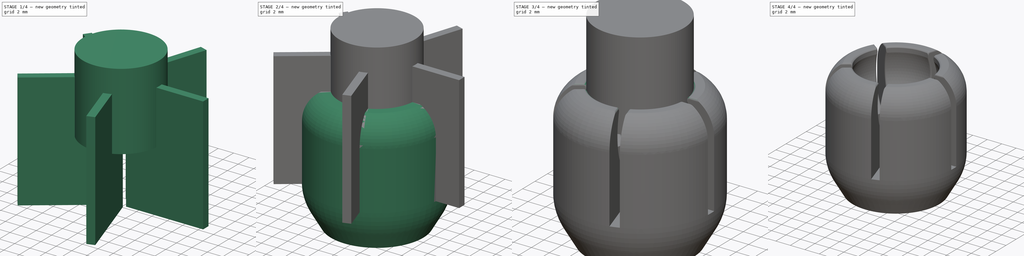
[diagram: build sequence overview — one tinted view per stage of 4, left to right]
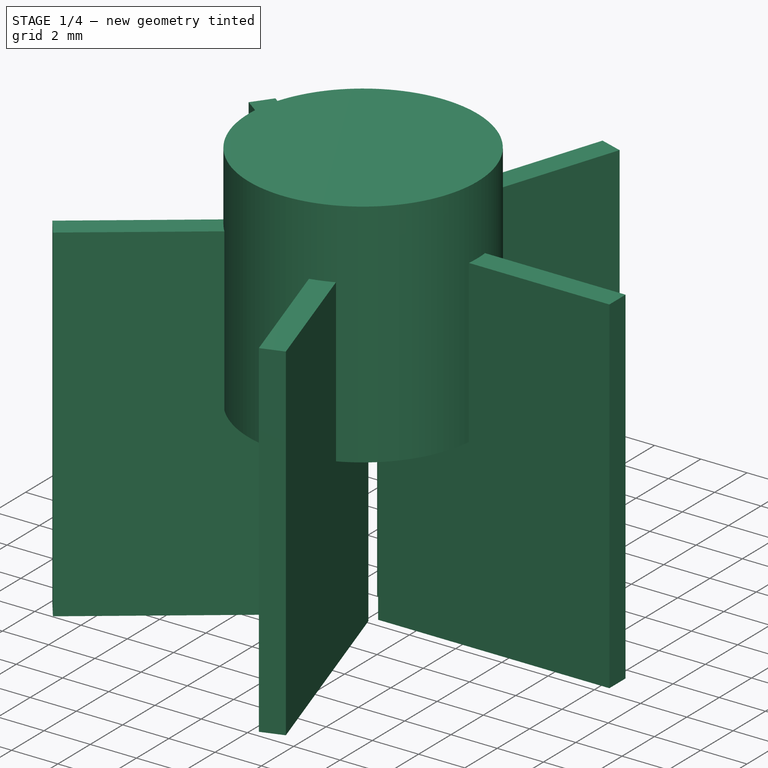
[diagram: stage 1 of 4 — iso view after this stage's code; geometry added in this stage tinted green]
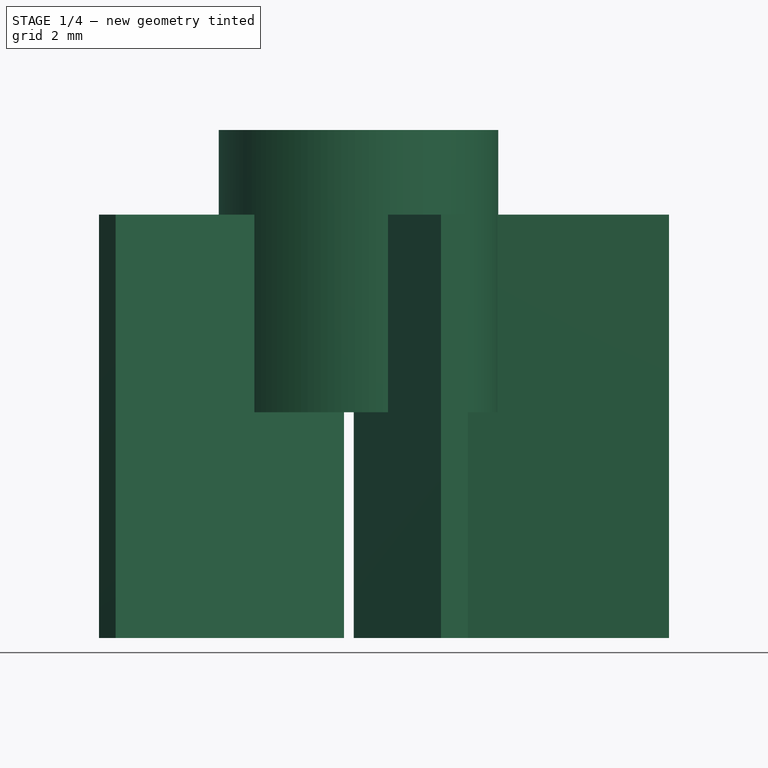
[diagram: stage 1 of 4 — front view after this stage's code; geometry added in this stage tinted green]
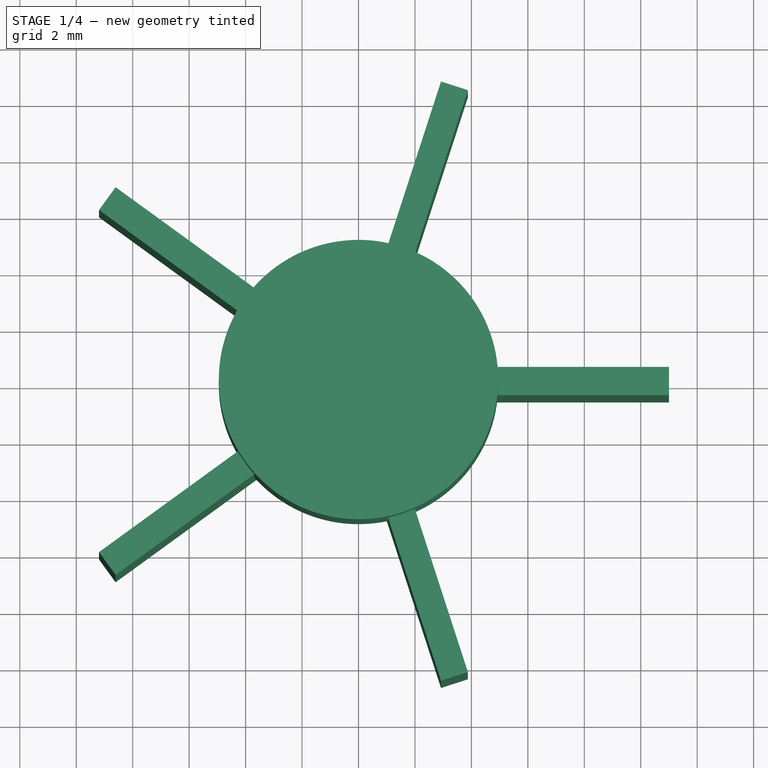
[diagram: stage 1 of 4 — top view after this stage's code; geometry added in this stage tinted green]
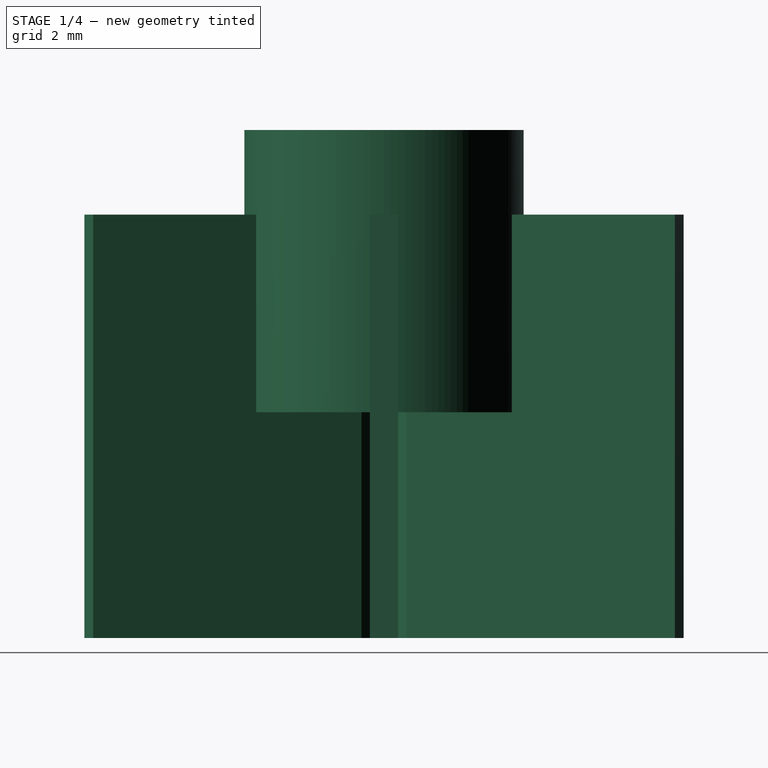
[diagram: stage 1 of 4 — right view after this stage's code; geometry added in this stage tinted green]
FCSTD DOCUMENT  (FreeCAD 0.16R6712 (Git))
Label: bola_loca
License: All rights reserved
LicenseURL: http://en.wikipedia.org/wiki/All_rights_reserved
objects: Part::Cut×3, PartDesign::Fillet×3, PartDesign::Chamfer×2, Sketcher::SketchObject×1, Part::Sphere×1, PartDesign::Revolution×1, Part::Box×1, Part::FeaturePython×1, Part::Cylinder×1
note: 15 computed .brp shape members not serialized (recipe doc carries the construction recipe); baked Part::Feature solids carry a one-line shape summary decoded from their .brp

FEATURE [Part::Box] Box  label="Cubo"
  Height = 15
  Length = 10
  Placement = pos=(1,-0.5,5) rot=(0,0,1;0rad)
  Width = 1
FEATURE [Part::FeaturePython] Array  # Draft array (typed FeaturePython)
  Angle = 360
  ArrayType = 1
  Axis = (0,0,1)
  Base = -> Box
  Center = (0,0,0)
  Fuse = false
  IntervalAxis = (0,0,0)
  IntervalX = (1,0,0)
  IntervalY = (0,1,0)
  IntervalZ = (0,0,0)
  NumberPolar = 5
  NumberX = 2
  NumberY = 2
  NumberZ = 1
FEATURE [Part::Cylinder] Cylinder  label="Cilindro"
  Angle = 360
  Height = 10
  Placement = pos=(0,0,13) rot=(0,0,1;0rad)
  Radius = 4.95
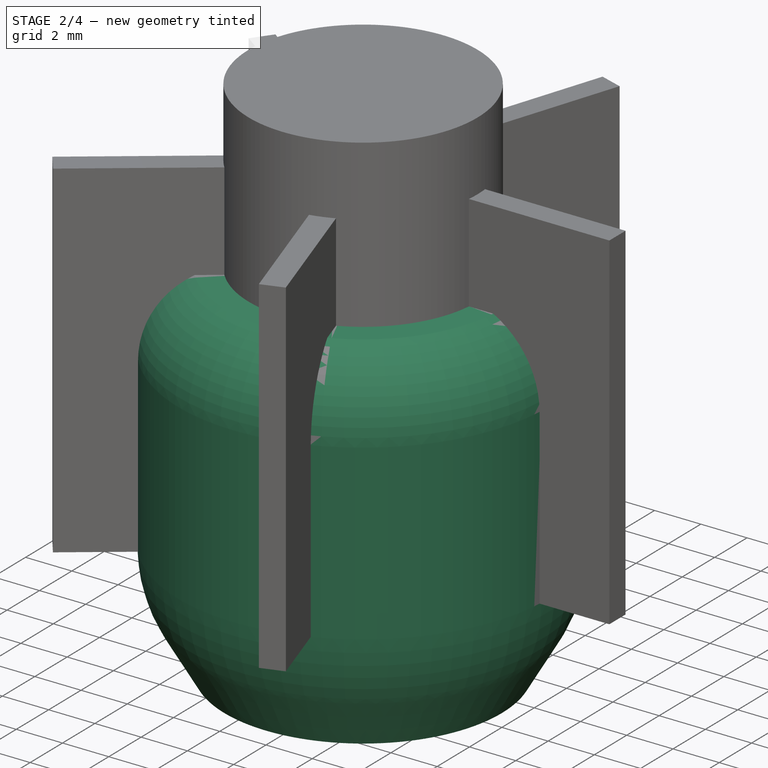
[diagram: stage 2 of 4 — iso view after this stage's code; geometry added in this stage tinted green]
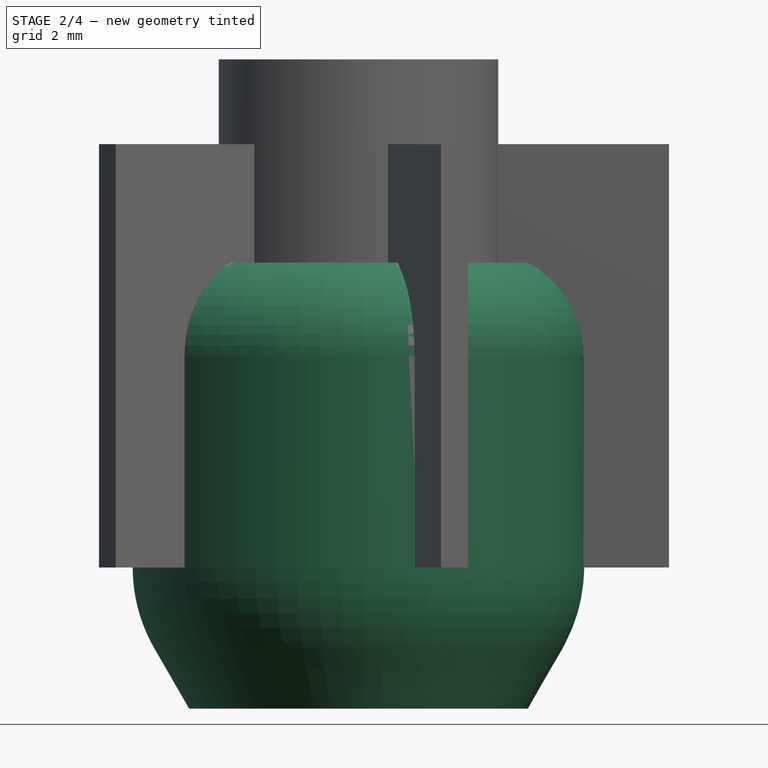
[diagram: stage 2 of 4 — front view after this stage's code; geometry added in this stage tinted green]
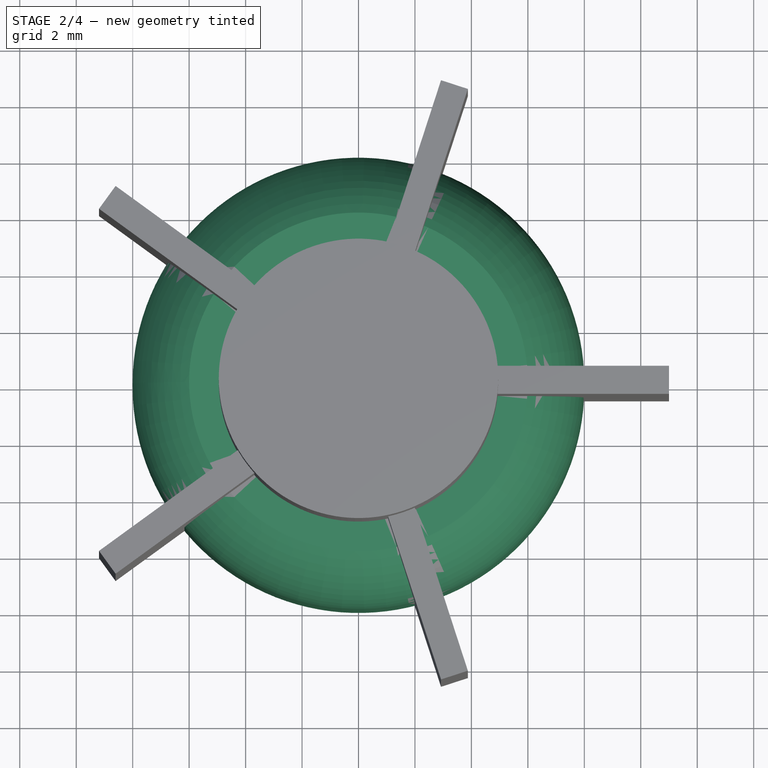
[diagram: stage 2 of 4 — top view after this stage's code; geometry added in this stage tinted green]
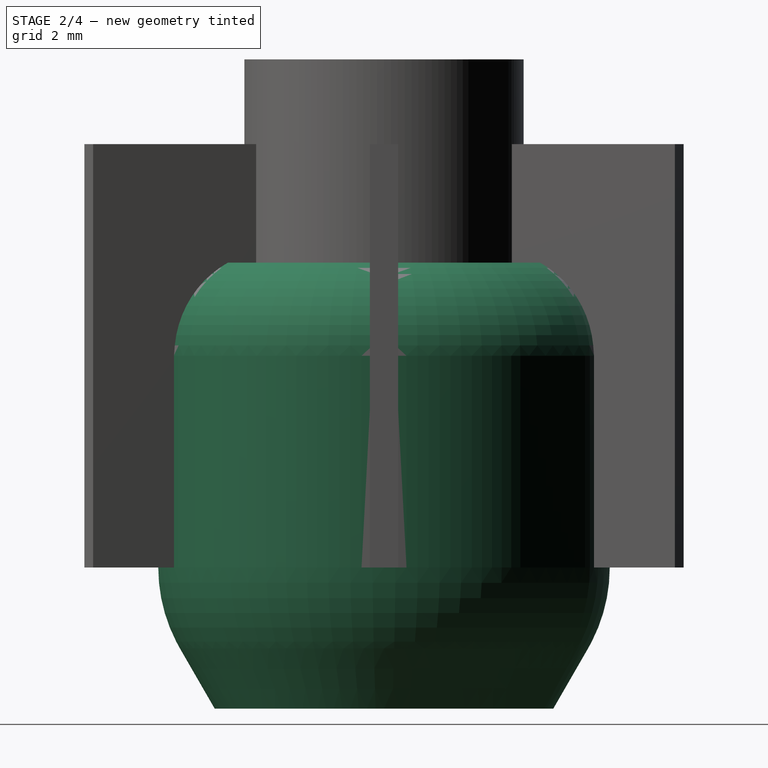
[diagram: stage 2 of 4 — right view after this stage's code; geometry added in this stage tinted green]
FEATURE [Sketcher::SketchObject] Sketch
  Placement = pos=(0,0,0) rot=(1,0,0;1.5708rad)
  sketch-geometry (9):
    g0: LineSegment StartX=-1.6 StartY=0 StartZ=0 EndX=-1.6 EndY=5 EndZ=0
    g1: LineSegment StartX=-1.6 StartY=5 StartZ=0 EndX=-3 EndY=5 EndZ=0
    g2: LineSegment StartX=-3 StartY=5 StartZ=0 EndX=-3 EndY=15.8 EndZ=0
    g3: LineSegment StartX=-3 StartY=15.8 StartZ=0 EndX=-6 EndY=15.8 EndZ=0
    g4: ArcOfCircle CenterX=-4.2775 CenterY=12.5 CenterZ=0 NormalX=0 NormalY=0 NormalZ=1 Radius=3.7225 StartAngle=2.05186 EndAngle=3.14159
    g5: LineSegment StartX=-8 StartY=12.5 StartZ=0 EndX=-8 EndY=5 EndZ=0
    g6: ArcOfCircle CenterX=-2.26795 CenterY=5 CenterZ=0 NormalX=0 NormalY=0 NormalZ=1 Radius=5.73205 StartAngle=3.14159 EndAngle=3.66519
    g7: LineSegment StartX=-7.23205 StartY=2.13397 StartZ=0 EndX=-6 EndY=0 EndZ=0
    g8: LineSegment StartX=-6 StartY=0 StartZ=0 EndX=-1.6 EndY=0 EndZ=0
  constraints (29):
    c: PointOnObject(g0,g-1)
    c: Vertical(g0)
    c: Coincident(g0,g1)
    c: Horizontal(g1)
    c: Coincident(g1,g2)
    c: Vertical(g2)
    c: Coincident(g2,g3)
    c: Horizontal(g3)
    c: Coincident(g4,g3)
    c: DistanceX(g0,g-1) = 1.6
    c: DistanceX(g1,g-1) = 3
    c: DistanceY(g-1,g2) = 15.8
    c: Vertical(g5)
    c: DistanceX(g3,g3) = 3
    c: DistanceY(g-1,g5) = 12.5
    c: DistanceX(g5,g-1) = 8
    c: Coincident(g4,g5)
    c: Tangent(g5,g4)
    c: DistanceY(g-1,g5) = 5
    c: Coincident(g6,g5)
    c: Tangent(g6,g5)
    c: Coincident(g7,g6)
    c: PointOnObject(g7,g-1)
    c: Coincident(g8,g7)
    c: Coincident(g8,g0)
    c: Tangent(g6,g7)
    c: DistanceX(g7,g-1) = 6
    c: Angle(g8,g7) = 2.0944
    c: DistanceY(g0,g0) = 5
FEATURE [Part::Sphere] Sphere  label="Esfera"
  Angle1 = -90
  Angle2 = 90
  Angle3 = 360
  Placement = pos=(0,0,13) rot=(0,0,1;0rad)
  Radius = 5.35
FEATURE [PartDesign::Revolution] Revolution
  Angle = 360
  Axis = (0,0,1)
  Base = (0,0,0)
  Placement = pos=(0,0,0) rot=(1,0,0;1.5708rad)
  ReferenceAxis = -> Sketch [V_Axis]
  Sketch = -> Sketch
FEATURE [Part::Cut] Cut
  Base = -> Revolution
  Tool = -> Sphere
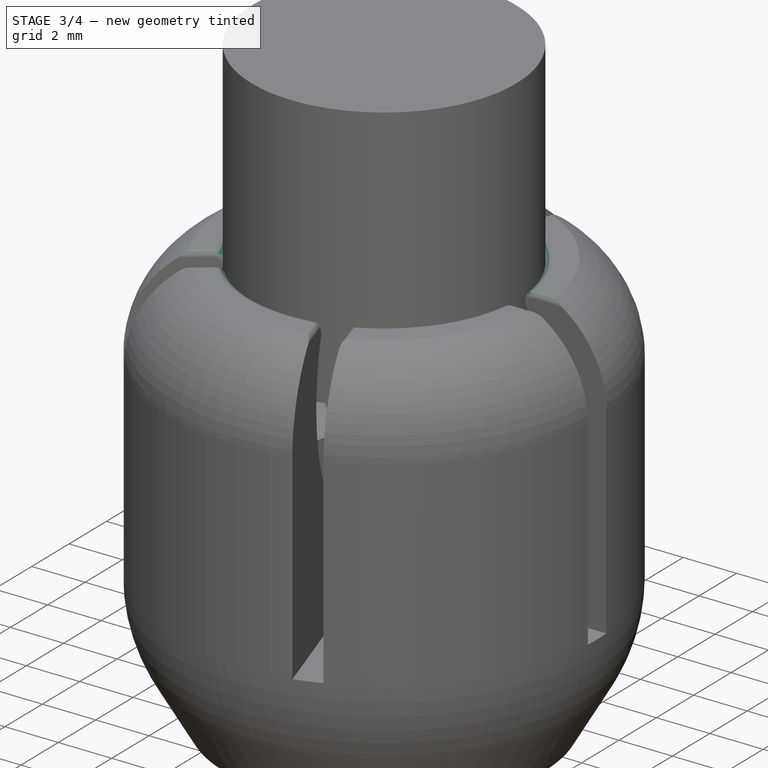
[diagram: stage 3 of 4 — iso view after this stage's code; geometry added in this stage tinted green]
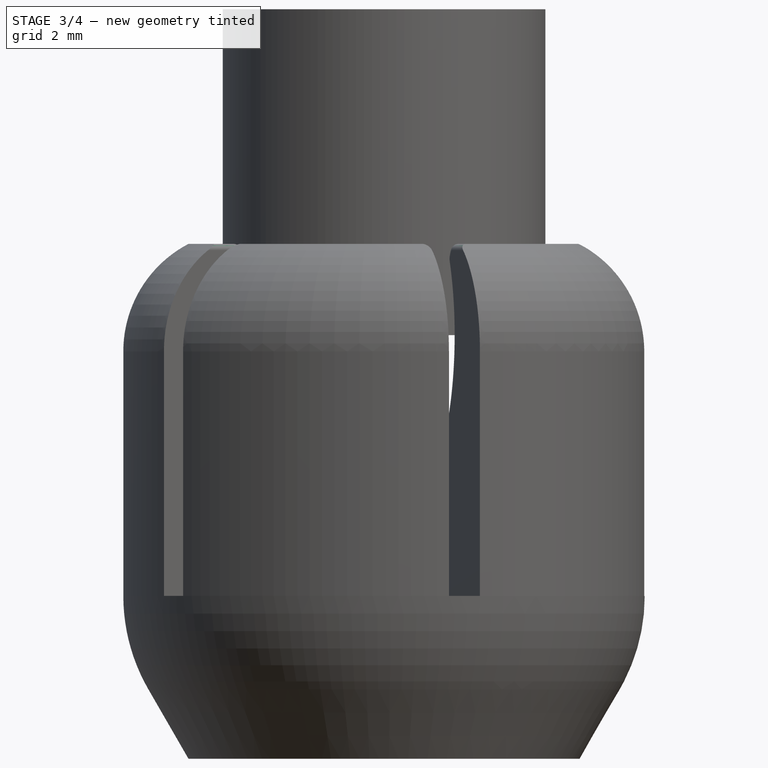
[diagram: stage 3 of 4 — front view after this stage's code; geometry added in this stage tinted green]
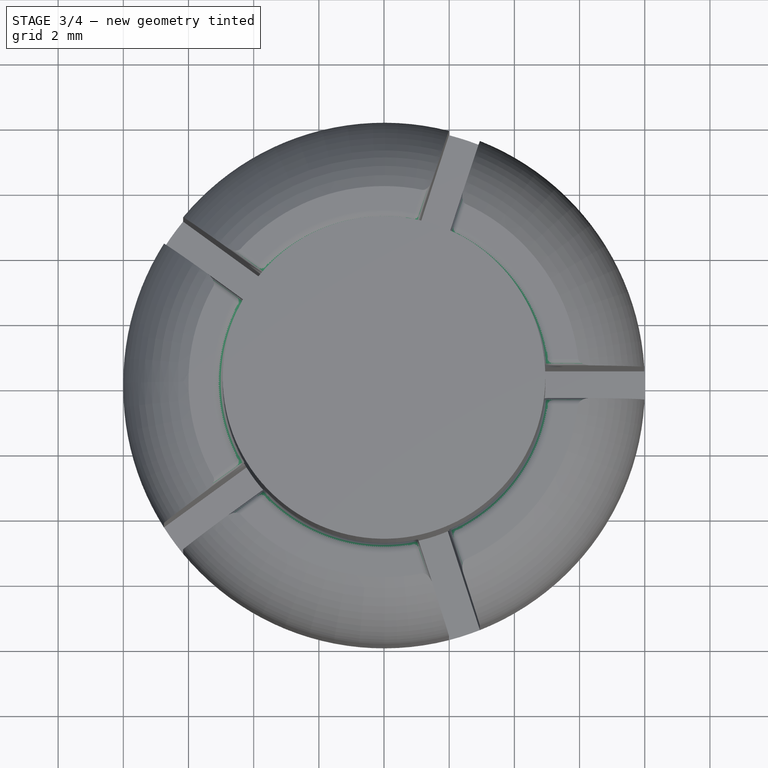
[diagram: stage 3 of 4 — top view after this stage's code; geometry added in this stage tinted green]
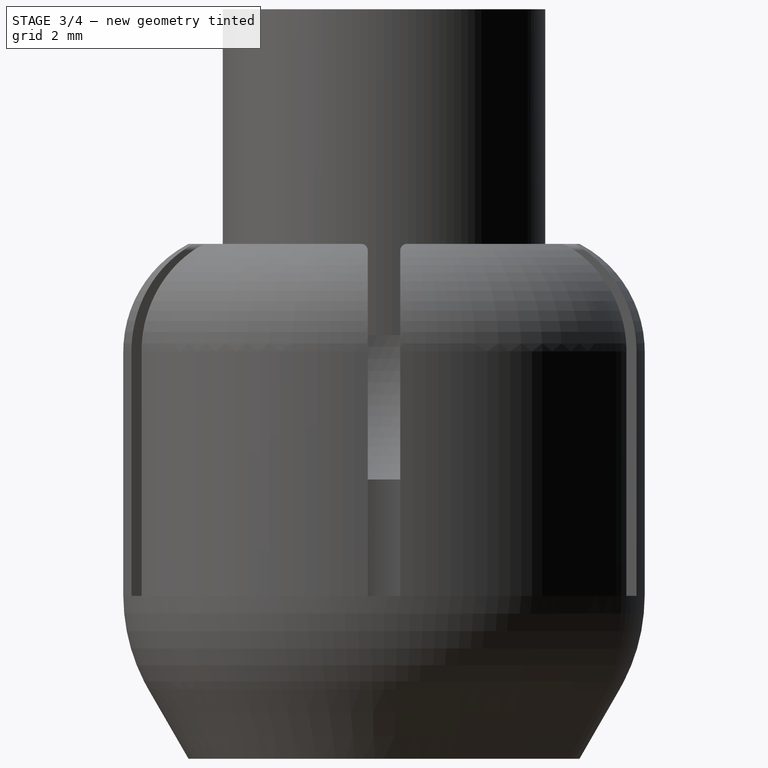
[diagram: stage 3 of 4 — right view after this stage's code; geometry added in this stage tinted green]
FEATURE [PartDesign::Chamfer] Chamfer
  Base = -> Cut [Edge13]
  Size = 0.5
FEATURE [PartDesign::Fillet] Fillet
  Base = -> Chamfer [Edge2,Edge6]
  Radius = 0.35
FEATURE [Part::Cut] Cut001
  Base = -> Fillet
  Tool = -> Array
FEATURE [PartDesign::Fillet] Fillet001
  Base = -> Cut001 [Edge16,Edge14,Edge8,Edge61,Edge146,Edge156,Edge76,Edge105,Edge116,Edge124]
  Radius = 0.2
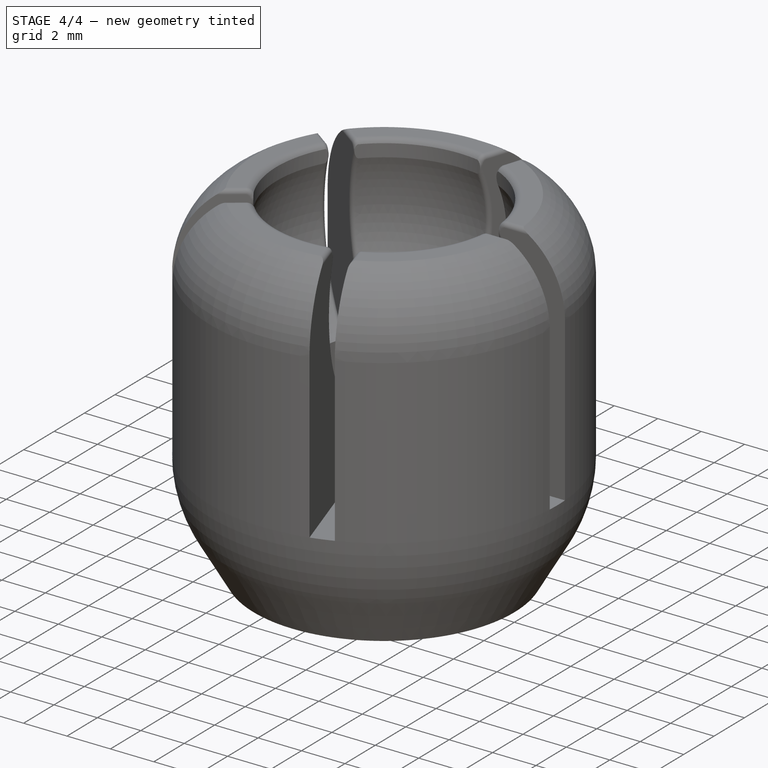
[diagram: stage 4 of 4 — iso view after this stage's code; geometry added in this stage tinted green]
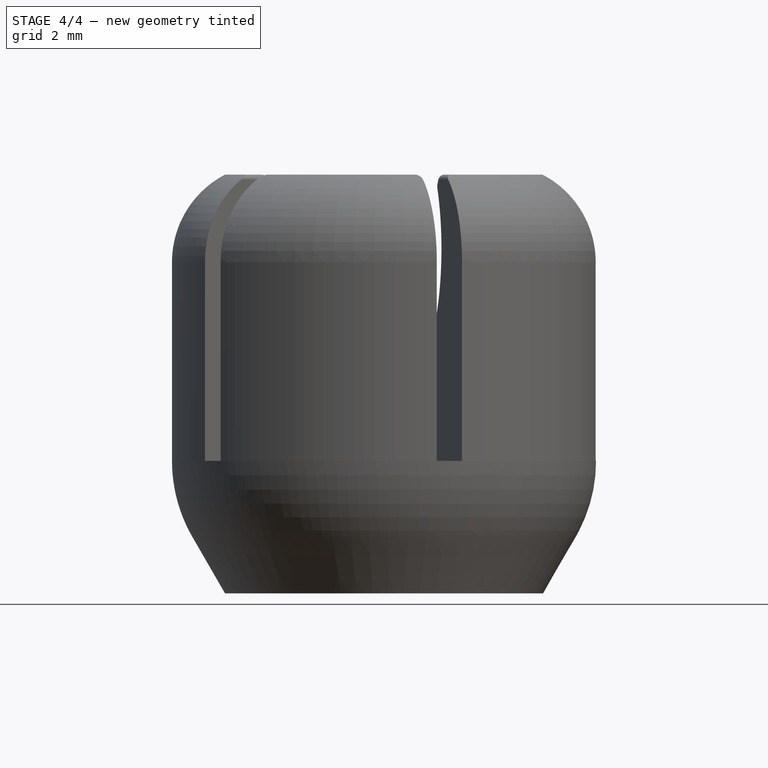
[diagram: stage 4 of 4 — front view after this stage's code; geometry added in this stage tinted green]
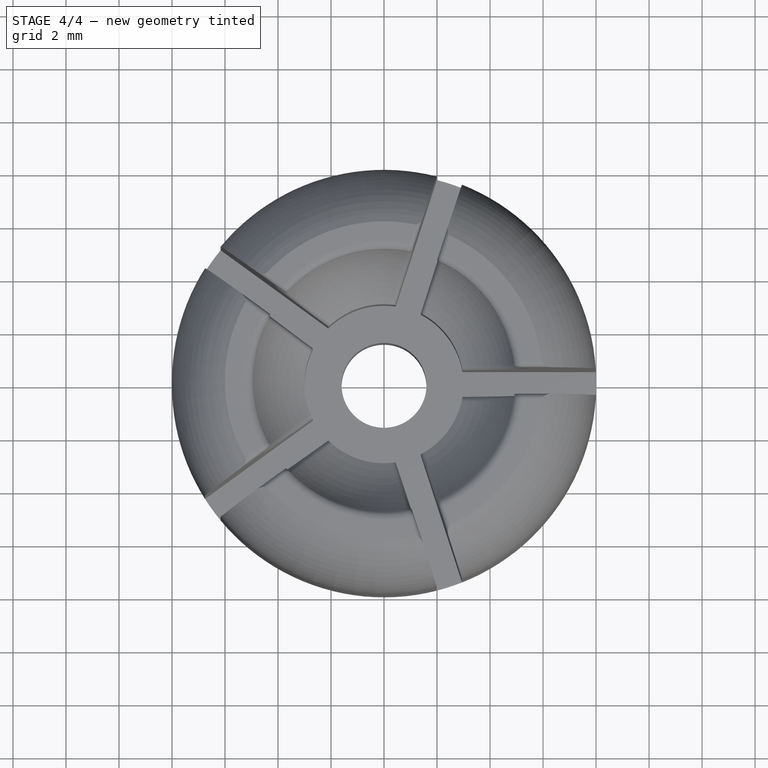
[diagram: stage 4 of 4 — top view after this stage's code; geometry added in this stage tinted green]
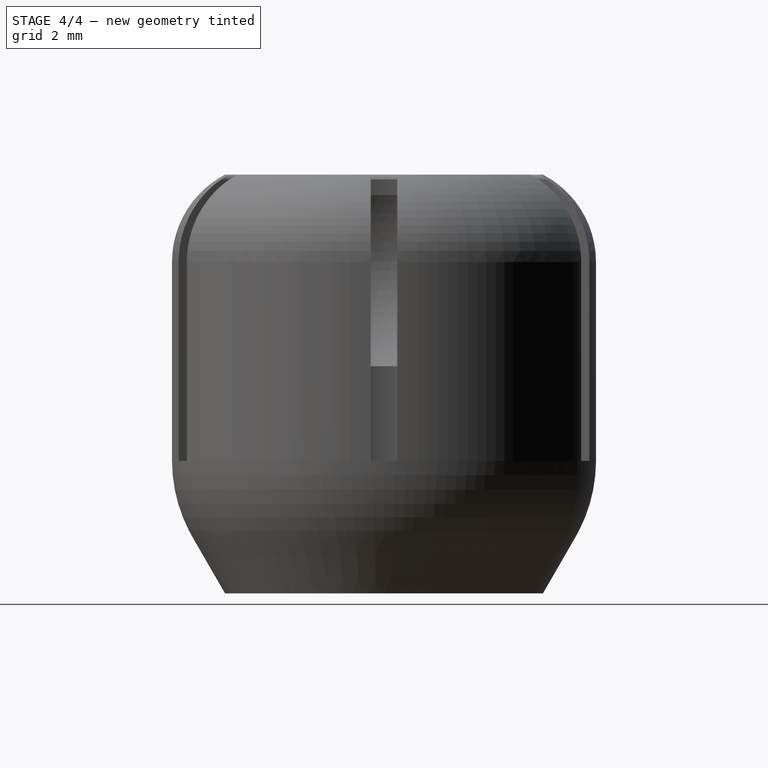
[diagram: stage 4 of 4 — right view after this stage's code; geometry added in this stage tinted green]
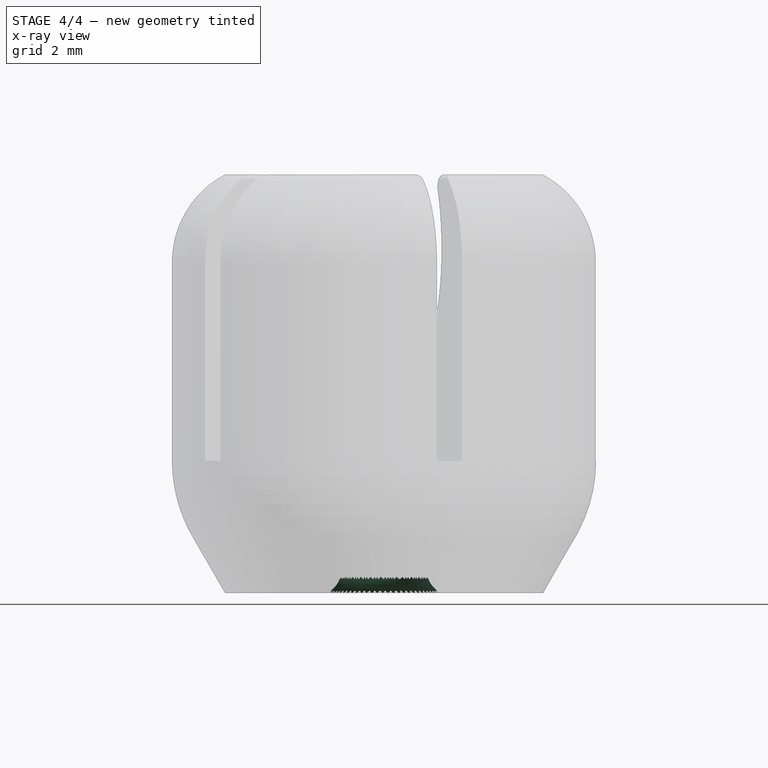
[diagram: stage 4 of 4 — x-ray composite at the front view; earlier geometry ghosted, this stage's added geometry solid]
FEATURE [PartDesign::Chamfer] Chamfer001
  Base = -> Fillet001 [Edge156]
  Size = 0.5
FEATURE [PartDesign::Fillet] Fillet002
  Base = -> Chamfer001 [Edge2]
  Radius = 1
FEATURE [Part::Cut] Cut002
  Base = -> Fillet002
  Tool = -> Cylinder
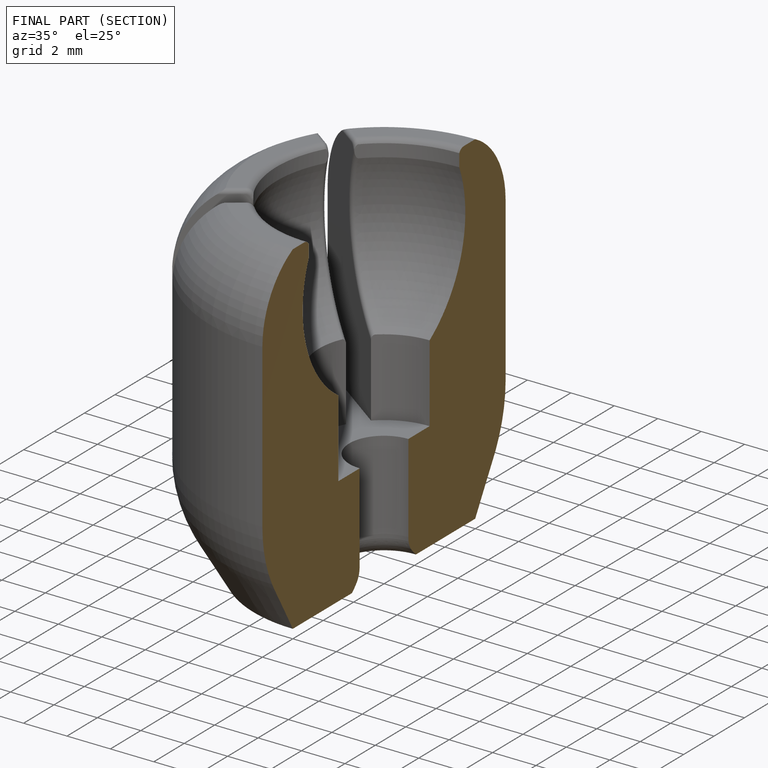
[diagram: finished part — half-section view (interior)]
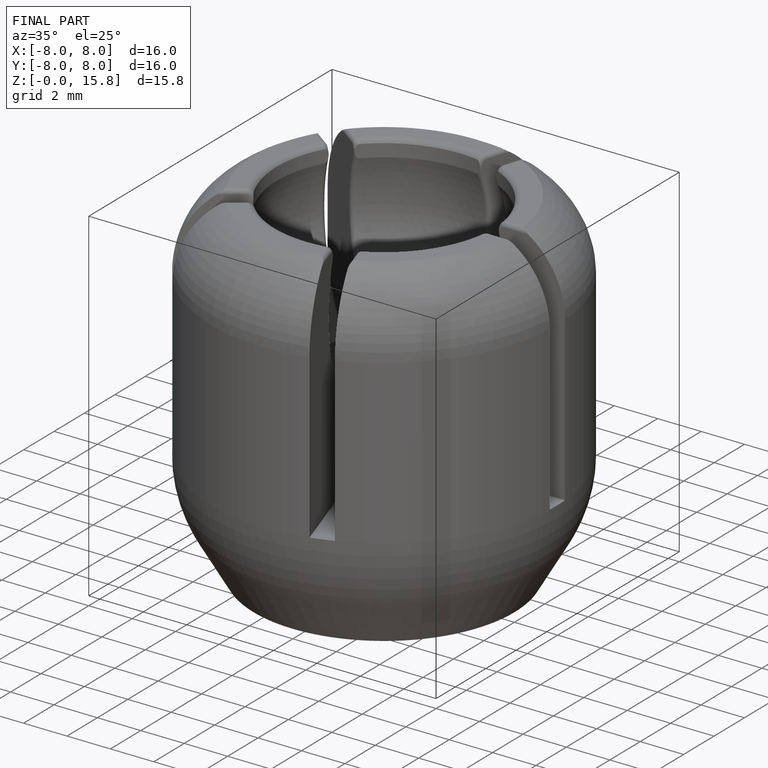
[diagram: finished part — iso view with bounding-box wireframe]
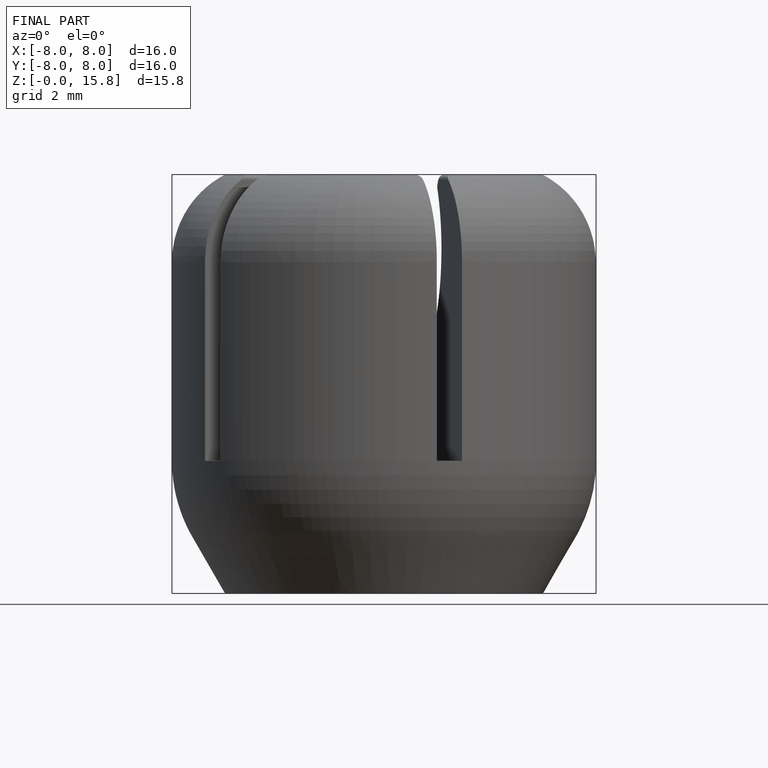
[diagram: finished part — front view with bounding-box wireframe]
